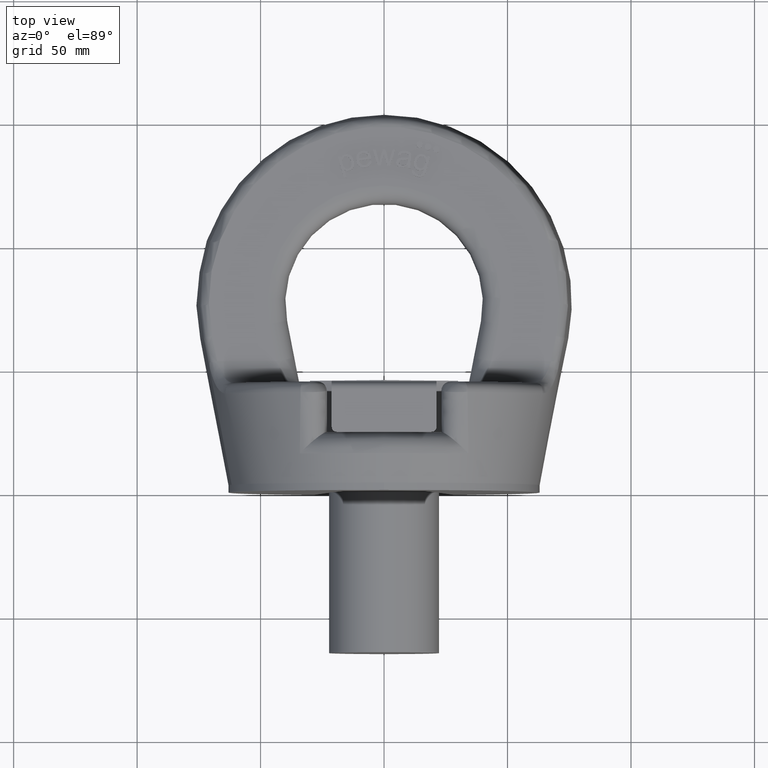
[diagram: clean part render]
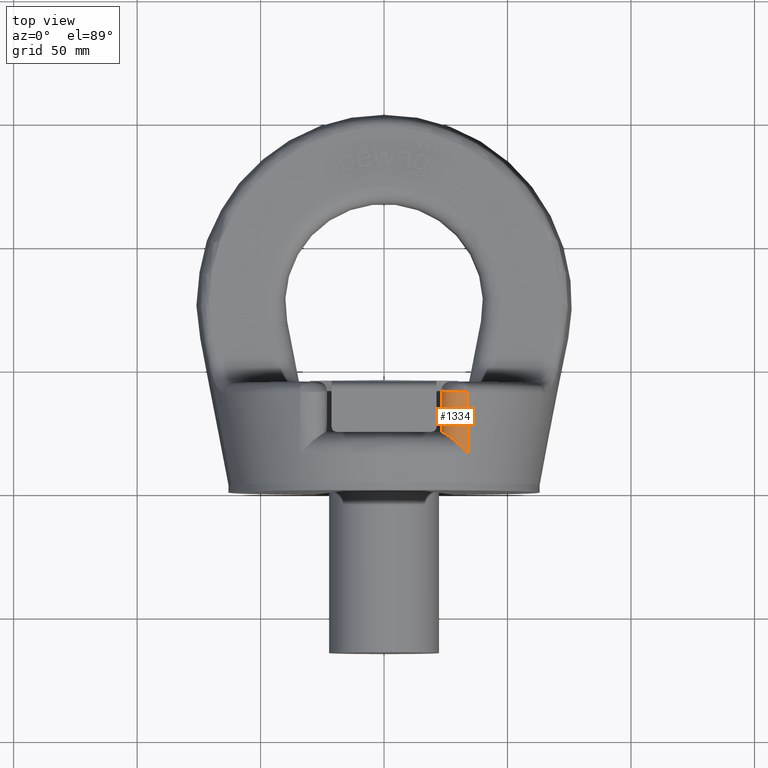
[diagram: same view with one face highlighted and labeled with its STEP entity id]
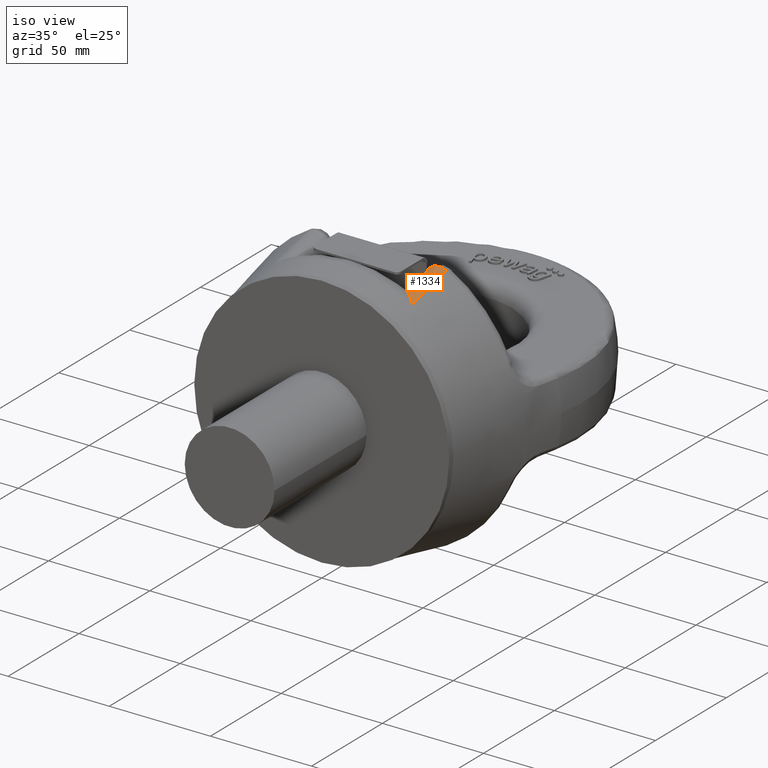
[diagram: same view with one face highlighted and labeled with its STEP entity id]
A machine part, top view. The second image highlights one B-rep face of the part: STEP entity #1334.
A second angle (iso view) of the same face is appended — the face is thin or edge-on in the first view.
In plain terms, the highlighted face is a freeform B-spline surface patch.
Its self-contained STEP definition (entity closure, byte-faithful):
#1024=(
BOUNDED_SURFACE()
B_SPLINE_SURFACE(3,2,((#6949,#6950,#6951),(#6952,#6953,#6954),(#6955,#6956,
#6957),(#6958,#6959,#6960)),.UNSPECIFIED.,.F.,.F.,.F.)
B_SPLINE_SURFACE_WITH_KNOTS((4,4),(3,3),(0.,1.),(0.,1.),.UNSPECIFIED.)
GEOMETRIC_REPRESENTATION_ITEM()
RATIONAL_B_SPLINE_SURFACE(((1.,0.513347366735469,1.),(1.,0.507369651240922,
1.),(1.,0.500833787961568,1.),(1.,0.49353655405736,1.)))
REPRESENTATION_ITEM('')
SURFACE()
);
#1110=FACE_OUTER_BOUND('',#1850,.T.);
#1334=ADVANCED_FACE('',(#1110),#1024,.T.);
#1850=EDGE_LOOP('',(#2902,#2903,#2904,#2905,#2906));
#2902=ORIENTED_EDGE('',*,*,#4386,.F.);
#2903=ORIENTED_EDGE('',*,*,#4428,.T.);
#2904=ORIENTED_EDGE('',*,*,#4355,.F.);
#2905=ORIENTED_EDGE('',*,*,#4351,.F.);
#2906=ORIENTED_EDGE('',*,*,#4429,.F.);
#3962=VERTEX_POINT('',#6653);
#3963=VERTEX_POINT('',#6658);
#3966=VERTEX_POINT('',#6672);
#3996=VERTEX_POINT('',#6828);
#3997=VERTEX_POINT('',#6836);
#4351=EDGE_CURVE('',#3962,#3963,#4881,.T.);
#4355=EDGE_CURVE('',#3963,#3966,#4882,.T.);
#4386=EDGE_CURVE('',#3996,#3997,#4895,.T.);
#4428=EDGE_CURVE('',#3996,#3966,#4899,.T.);
#4429=EDGE_CURVE('',#3997,#3962,#4900,.T.);
#4881=B_SPLINE_CURVE_WITH_KNOTS('',3,(#6654,#6655,#6656,#6657),
 .UNSPECIFIED.,.F.,.F.,(4,4),(0.,1.),.UNSPECIFIED.);
#4882=B_SPLINE_CURVE_WITH_KNOTS('',3,(#6665,#6666,#6667,#6668,#6669,#6670,
#6671),.UNSPECIFIED.,.F.,.F.,(4,3,4),(0.,0.634142953510266,1.),
 .UNSPECIFIED.);
#4895=B_SPLINE_CURVE_WITH_KNOTS('',3,(#6829,#6830,#6831,#6832,#6833,#6834,
#6835),.UNSPECIFIED.,.F.,.F.,(4,3,4),(0.,0.277118209499198,1.),
 .UNSPECIFIED.);
#4899=B_SPLINE_CURVE_WITH_KNOTS('',3,(#6935,#6936,#6937,#6938,#6939,#6940),
 .UNSPECIFIED.,.F.,.F.,(4,2,4),(0.,0.5,1.),.UNSPECIFIED.);
#4900=B_SPLINE_CURVE_WITH_KNOTS('',3,(#6941,#6942,#6943,#6944,#6945,#6946,
#6947,#6948),.UNSPECIFIED.,.F.,.F.,(4,2,2,4),(0.,0.5,0.75,1.),
 .UNSPECIFIED.);
#6653=CARTESIAN_POINT('',(23.4915649416161,23.5,53.3119321966971));
#6654=CARTESIAN_POINT('',(23.4915649416161,23.5,53.3119321966971));
#6655=CARTESIAN_POINT('',(23.3136918780214,23.5,52.6604430579572));
#6656=CARTESIAN_POINT('',(23.225,23.5,51.9970093150612));
#6657=CARTESIAN_POINT('',(23.225,23.5,51.3216965040857));
#6658=CARTESIAN_POINT('',(23.225,23.5,51.3216965040857));
#6665=CARTESIAN_POINT('',(23.225,23.5,51.3216965040857));
#6666=CARTESIAN_POINT('',(23.225,27.0707683928262,52.1312596754835));
#6667=CARTESIAN_POINT('',(23.225,30.6426110756417,52.9360954085137));
#6668=CARTESIAN_POINT('',(23.225,34.2153756009028,53.7368032770437));
#6669=CARTESIAN_POINT('',(23.225,36.2766165898128,54.198757001418));
#6670=CARTESIAN_POINT('',(23.225,38.3381663474539,54.659334844732));
#6671=CARTESIAN_POINT('',(23.225,40.4000000000008,55.1186361043114));
#6672=CARTESIAN_POINT('',(23.225,40.4000000000008,55.1186361043114));
#6828=CARTESIAN_POINT('',(33.8328326084272,39.7108937042252,61.4629911497163));
#6829=CARTESIAN_POINT('',(33.8328326084272,39.7108937042252,61.4629911497163));
#6830=CARTESIAN_POINT('',(33.8569733561833,37.4191727761368,60.939521576275));
#6831=CARTESIAN_POINT('',(33.881622047904,35.1279132817464,60.4140502382729));
#6832=CARTESIAN_POINT('',(33.9068116186159,32.8371630093534,59.8863982153276));
#6833=CARTESIAN_POINT('',(33.972520149515,26.8616012668625,58.5099857448549));
#6834=CARTESIAN_POINT('',(34.0418989200799,20.8894462217521,57.1188192283476));
#6835=CARTESIAN_POINT('',(34.1156276807716,14.9217874084505,55.708932922259));
#6836=CARTESIAN_POINT('',(34.1156276807716,14.9217874084505,55.708932922259));
#6935=CARTESIAN_POINT('',(33.8328326084272,39.7108937042252,61.4629911497162));
#6936=CARTESIAN_POINT('',(31.6268991638417,39.5821945381932,62.6486152989745));
#6937=CARTESIAN_POINT('',(28.8618981962364,39.589519562343,62.5810944410035));
#6938=CARTESIAN_POINT('',(24.5730063090593,39.8692756137103,60.003964335126));
#6939=CARTESIAN_POINT('',(23.2250000000007,40.1290871290704,57.6112770981542));
#6940=CARTESIAN_POINT('',(23.225,40.3999999999996,55.1186361043149));
#6941=CARTESIAN_POINT('',(34.1156276807716,14.9217874084505,55.708932922259));
#6942=CARTESIAN_POINT('',(32.538069323991,16.6009574647403,57.0590218938992));
#6943=CARTESIAN_POINT('',(30.5974926654496,18.4136149212484,57.8665348893735));
#6944=CARTESIAN_POINT('',(27.5033869510113,20.9915283203247,57.5889493524953));
#6945=CARTESIAN_POINT('',(26.4541154093263,21.8142600387412,57.232150996853));
#6946=CARTESIAN_POINT('',(24.6052210866085,23.0905519026001,55.7636995870623));
#6947=CARTESIAN_POINT('',(23.8486558659527,23.5,54.6198360133085));
#6948=CARTESIAN_POINT('',(23.4915649416161,23.5,53.3119321966971));
#6949=CARTESIAN_POINT('',(23.225,41.3361247414875,55.3270787395935));
#6950=CARTESIAN_POINT('',(23.225,38.7211738306169,67.0760882014573));
#6951=CARTESIAN_POINT('',(33.8302325273469,39.957912149938,61.5194063703954));
#6952=CARTESIAN_POINT('',(23.225,32.9356218533247,53.4573974910382));
#6953=CARTESIAN_POINT('',(23.2249999998187,30.1600601606793,65.367877860299));
#6954=CARTESIAN_POINT('',(33.91858761016,31.5574048650953,59.6011366622103));
#6955=CARTESIAN_POINT('',(23.225,24.5395751588039,51.5669954563474));
#6956=CARTESIAN_POINT('',(23.2249999999411,21.6706756850546,63.6757591207952));
#6957=CARTESIAN_POINT('',(34.0137274209369,23.1613556201577,57.6560307699035));
#6958=CARTESIAN_POINT('',(23.225,16.150790381467,49.6482163278272));
#6959=CARTESIAN_POINT('',(23.225,13.3216951362746,62.0168473838727));
#6960=CARTESIAN_POINT('',(34.1174720452523,14.7725777899175,55.6736773265828));